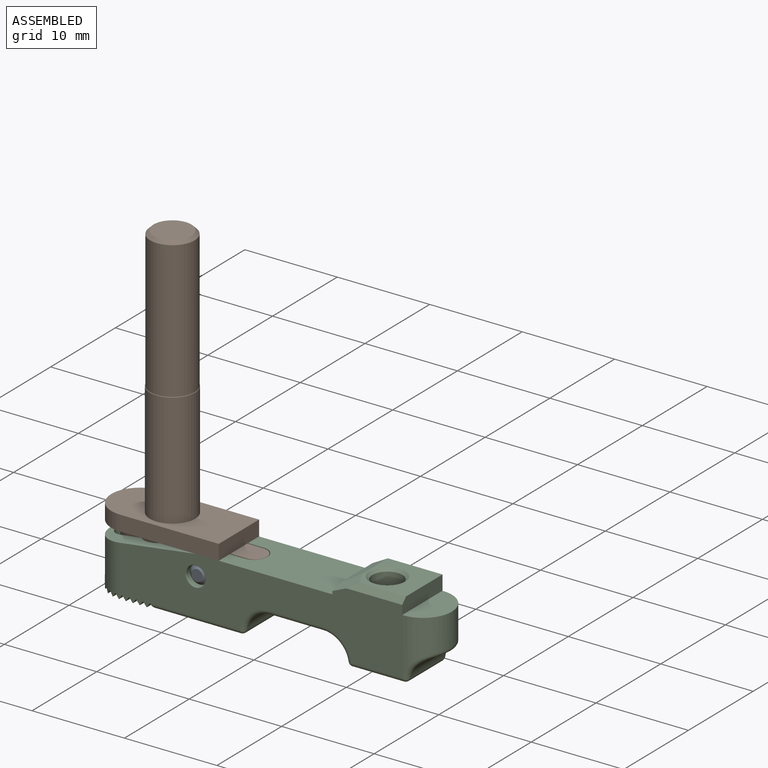
[diagram: assembled view]
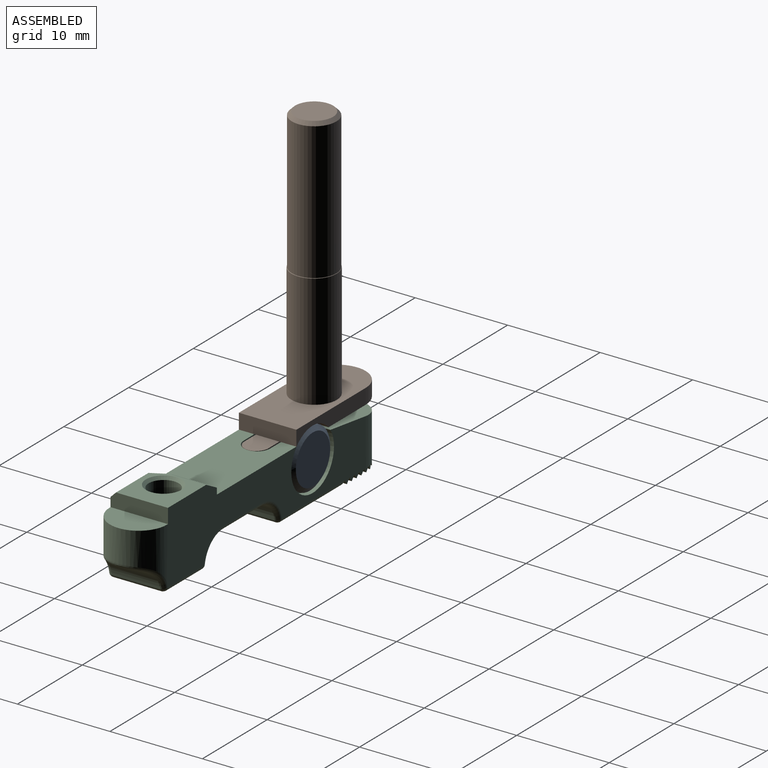
[diagram: assembled view, second angle]
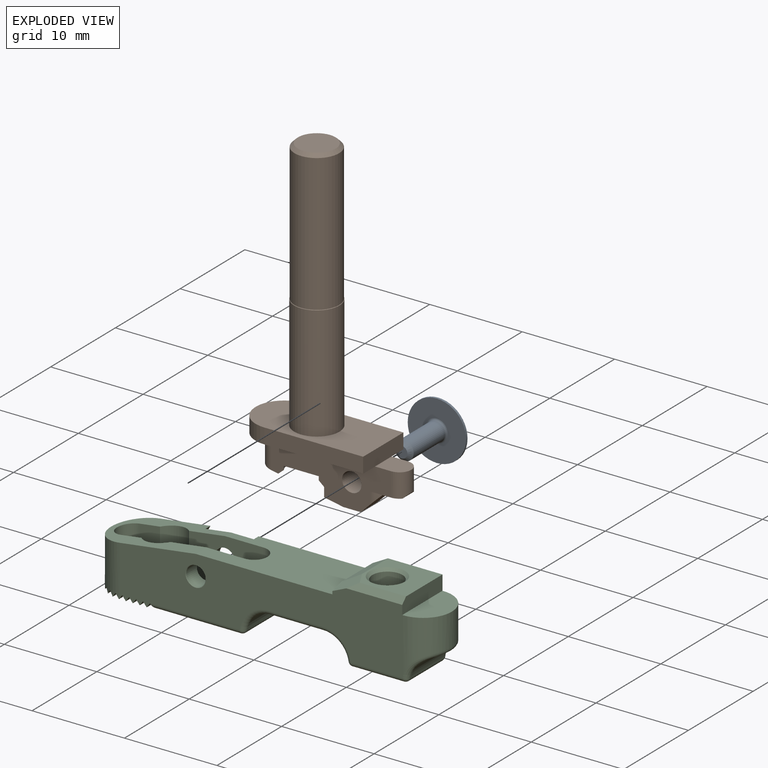
[diagram: exploded view]
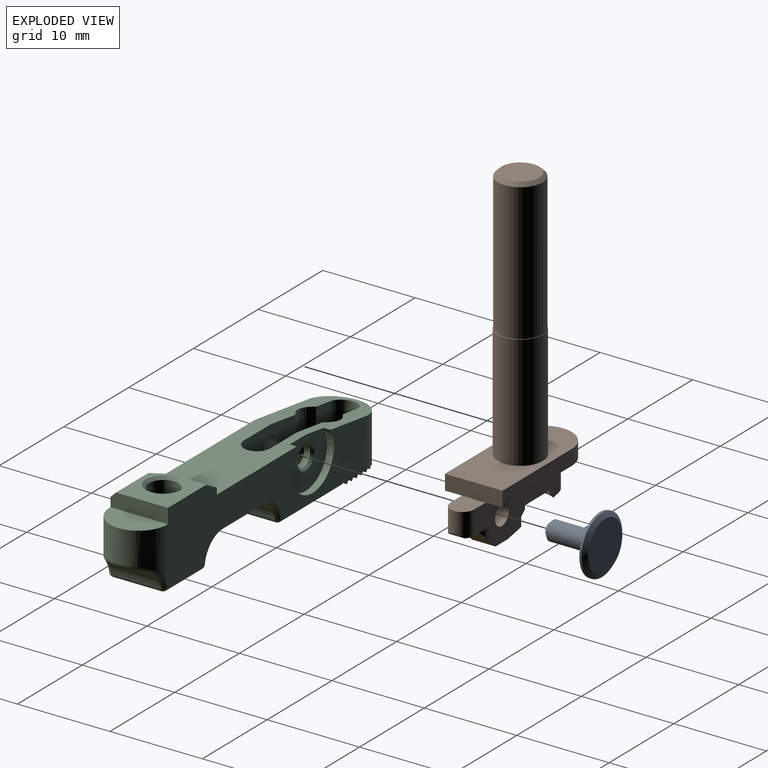
[diagram: exploded view, second angle]
ASSEMBLY  parts=3 mates=2
PART A: 8 faces, bbox 6.3x6.3x6 mm
  f0: torus R=1.22mm, axis (0,0,-1), area 2.2mm2, adj f4,f6
  f1: cone r=2.65mm half-angle=55deg, axis (0,0,1), area 11.1mm2, adj f3,f7
  f2: cone r=0.62mm half-angle=45deg, axis (0,0,-1), area 2.9mm2, adj f4,f5
  f3: cylinder r=3.15mm len=6.3mm, axis (0,0,-1), area 4.8mm2, adj f1,f6
  f4: cylinder r=1.03mm len=4.85mm, axis (0,0,1), area 31.2mm2, adj f0,f2
  f5: plane 1.25x1.25mm, normal (0,0,1), area 1.2mm2, adj f2
  f6: plane 6.3x6.3mm, normal (0,0,1), area 26.5mm2, adj f0,f3
  f7: plane 5.3x5.3mm, normal (0,0,-1), area 22.1mm2, adj f1
PART B: 35 faces, bbox 16.9x34.2x6.3 mm
  f0: cone r=2.41mm half-angle=45deg, axis (0,1,0), area 0.9mm2, adj f2,f4
  f1: cone r=2.45mm half-angle=45deg, axis (0,1,0), area 7.1mm2, adj f2,f34
  f2: cylinder r=2.41mm len=14.84mm, axis (0,-1,0), area 224.7mm2, adj f0,f1
  f3: cylinder r=1.05mm len=2.56mm, axis (0,0,-1), area 16.9mm2, adj f6,f7
  f4: cylinder r=2.45mm len=12.33mm, axis (0,1,0), area 189.8mm2, adj f0,f16
  f5: plane 2.64x2.15mm, normal (0.19,0.98,0), area 4.2mm2, adj f6,f7,f18,f31,f32,f33
  f6: plane 13.03x4.93mm, normal (0,0,1), area 42mm2, adj f3,f5,f8,f9,f10,f11,f17,f18
  f7: plane 13.03x4.93mm, normal (0,0,-1), area 42mm2, adj f3,f5,f8,f9,f10,f11,f17,f18
  f8: plane 2.56x2.06mm, normal (0.19,0.98,0), area 4.8mm2, adj f6,f7,f20,f30
  f9: cylinder r=2.28mm len=2.56mm, axis (0,1,0), area 1.1mm2, adj f6,f7,f28,f33
  f10: cylinder r=2.28mm len=2.56mm, axis (0,1,0), area 1.1mm2, adj f6,f7,f28,f29
  f11: plane 13.81x6.22mm, normal (0,1,0), area 46.7mm2, adj f6,f7,f12,f13,f14,f15,f18,f26
  f12: cylinder r=3.11mm len=6.22mm, axis (0,-1,0), area 16.1mm2, adj f11,f13,f15,f16
  f13: plane 10.7x1.65mm, normal (0,0,-1), area 13.9mm2, adj f11,f12,f14,f16,f27
  f14: plane 6.22x1.65mm, normal (-1,0,0), area 10.3mm2, adj f11,f13,f15,f16,f17
  f15: plane 10.7x1.65mm, normal (0,0,1), area 17.7mm2, adj f11,f12,f14,f16
  f16: plane 13.81x6.22mm, normal (0,-1,0), area 62.9mm2, adj f4,f12,f13,f14,f15
  f17: plane 3.03x2.56mm, normal (0,-1,0), area 7.1mm2, adj f6,f7,f14,f19
  f18: cylinder r=1.28mm len=3.35mm, axis (0,-1,0), area 12.8mm2, adj f5,f6,f7,f11
  f19: cylinder r=1.28mm len=2.58mm, axis (0,-1,0), area 9.9mm2, adj f6,f7,f17,f21,f22
  f20: plane 2.56x1.9mm, normal (0,1,0), area 4.9mm2, adj f6,f7,f8,f23
  f21: plane 1.76x0.35mm, normal (-0.71,0.71,0), area 0.6mm2, adj f19,f22
  f22: plane 3.2x2.56mm, normal (0,1,0), area 5.4mm2, adj f6,f7,f19,f21,f24,f25
  f23: plane 2.56x2.3mm, normal (-0.71,0.71,0), area 7.3mm2, adj f6,f7,f20,f24,f25
  f24: cylinder r=1.28mm len=1.28mm, axis (0,-1,0), area 0.9mm2, adj f6,f22,f23
  f25: cylinder r=1.28mm len=1.28mm, axis (0,-1,0), area 0.9mm2, adj f7,f22,f23
  f26: plane 4.92x1.1mm, normal (0,0,-1), area 3.7mm2, adj f11,f27
  f27: cylinder r=3.3mm len=4.92mm, axis (0,0,-1), area 4.2mm2, adj f11,f13,f26
  f28: plane 4.57x2.56mm, normal (0,1,0), area 11mm2, adj f6,f7,f9,f10
  f29: cone r=2.78mm half-angle=45deg, axis (0,1,0), area 1.9mm2, adj f6,f7,f10,f30
  f30: cylinder r=2.78mm len=2.56mm, axis (0,-1,0), area 2.8mm2, adj f6,f7,f8,f29
  f31: cylinder r=2.78mm len=0.31mm, axis (0,-1,0), area 0mm2, adj f5,f6,f33
  f32: cylinder r=2.78mm len=0.31mm, axis (0,-1,0), area 0mm2, adj f5,f7,f33
  f33: cone r=2.78mm half-angle=45deg, axis (0,1,0), area 1.9mm2, adj f5,f6,f7,f9,f31,f32
  f34: plane 4.1x4.1mm, normal (0,-1,0), area 13.2mm2, adj f1
PART C: 80 faces, bbox 37.2x6.6x8.6 mm
  f0: cone r=1.1mm half-angle=45deg, axis (0,-1,0), area 0.5mm2, adj f6,f13
  f1: cone r=1.05mm half-angle=45deg, axis (0,1,0), area 2.6mm2, adj f5,f26
  f2: cylinder r=1.44mm len=2.87mm, axis (0,0,1), area 11.6mm2, adj f8,f11,f15,f74
  f3: cone r=1.62mm half-angle=45deg, axis (0,0,1), area 4.7mm2, adj f4,f17
  f4: cylinder r=1.62mm len=4.05mm, axis (0,0,1), area 41.4mm2, adj f3,f27
  f5: cylinder r=1.05mm len=2.1mm, axis (0,-1,0), area 4.5mm2, adj f1,f8
  f6: cylinder r=1.05mm len=2.1mm, axis (0,-1,0), area 10.7mm2, adj f0,f74
  f7: plane 11.69x6.61mm, normal (-0.13,0,0.99), area 31.6mm2, adj f8,f9,f10,f12,f13,f15,f25,f26
  f8: plane 8.04x5.25mm, normal (0,-1,0), area 31.6mm2, adj f2,f5,f7,f11,f15,f75,f77,f78
  f9: plane 4.3x2.22mm, normal (0,-1,0), area 9.2mm2, adj f7,f73,f75,f78
  f10: plane 4.3x2.22mm, normal (0,1,0), area 9.2mm2, adj f7,f73,f76,f78
  f11: plane 3.74x2.87mm, normal (0,0,1), area 6.6mm2, adj f2,f8,f74,f77
  f12: plane 30.63x8.24mm, normal (0,1,0), area 137.5mm2, adj f7,f15,f16,f17,f18,f19,f25,f28
  f13: plane 30.63x7.64mm, normal (0,-1,0), area 159.4mm2, adj f0,f7,f15,f16,f18,f19,f28,f29
  f14: plane 9.29x5.22mm, normal (0,0,-1), area 48.5mm2, adj f41,f48,f54,f55
  f15: plane 14.8x6.22mm, normal (0,0,1), area 75.1mm2, adj f2,f7,f8,f12,f13,f16,f25,f26
  f16: plane 6.22x0.69mm, normal (-1,0,0), area 4mm2, adj f12,f13,f15,f71,f79
  f17: plane 5.9x5.62mm, normal (0,0,1), area 20.8mm2, adj f3,f12,f18,f71,f72,f79
  f18: plane 6.22x1.59mm, normal (1,0,0), area 9.7mm2, adj f12,f13,f17,f19,f72
  f19: plane 6.22x3.2mm, normal (0,0,1), area 15.8mm2, adj f12,f13,f18,f46
  f20: cylinder r=2.7mm len=5.22mm, axis (0,-1,0), area 15mm2, adj f57,f66,f67,f68,f69
  f21: plane 5.58x5.22mm, normal (0,0,-1), area 29.1mm2, adj f53,f57,f59,f60
  f22: cylinder r=2.7mm len=5.22mm, axis (0,-1,0), area 19.9mm2, adj f23,f52,f59,f64
  f23: plane 5.75x5.22mm, normal (0,0,-1), area 30mm2, adj f22,f24,f50,f63
  f24: cylinder r=2.7mm len=5.22mm, axis (0,-1,0), area 19.9mm2, adj f23,f49,f55,f61
  f25: cylinder r=3.3mm len=6.6mm, axis (0,1,0), area 11mm2, adj f7,f12,f15,f26
  f26: plane 6.6x5.5mm, normal (0,1,0), area 24.7mm2, adj f1,f7,f15,f25
  f27: plane 3.25x3.25mm, normal (0,0,1), area 8.3mm2, adj f4
  f28: plane 6.22x0.5mm, normal (-0.79,0,-0.62), area 3.9mm2, adj f12,f13,f29,f44
  f29: plane 6.22x0.5mm, normal (0.81,0,-0.58), area 3.8mm2, adj f12,f13,f28,f36,f47
  f30: plane 5.34x0.51mm, normal (-0.79,0,-0.62), area 3.2mm2, adj f31,f35,f47
  f31: plane 4.78x0.52mm, normal (0.81,0,-0.58), area 2.7mm2, adj f30,f32,f47
  f32: plane 4.09x0.54mm, normal (-0.79,0,-0.62), area 2.2mm2, adj f31,f33,f47
  f33: plane 2.9x0.5mm, normal (0.81,0,-0.58), area 1.2mm2, adj f32,f47
  f34: plane 5.98x0.51mm, normal (-0.79,0,-0.62), area 3.7mm2, adj f35,f37,f47
  f35: plane 5.7x0.51mm, normal (0.81,0,-0.58), area 3.4mm2, adj f30,f34,f47
  f36: plane 6.22x0.5mm, normal (-0.79,0,-0.62), area 3.9mm2, adj f29,f37,f47
  f37: plane 6.14x0.5mm, normal (0.81,0,-0.58), area 3.7mm2, adj f34,f36,f47
  f38: plane 6.22x0.5mm, normal (-0.79,0,-0.62), area 3.9mm2, adj f12,f13,f39,f42
  f39: plane 6.22x0.5mm, normal (0.81,0,-0.58), area 3.8mm2, adj f12,f13,f38,f45
  f40: plane 6.22x0.5mm, normal (0.81,0,-0.58), area 3.8mm2, adj f12,f13,f41,f43
  f41: plane 6.38x0.66mm, normal (-0.79,0,-0.62), area 3.8mm2, adj f14,f40,f48,f54
  f42: plane 6.22x0.5mm, normal (0.81,0,-0.58), area 3.8mm2, adj f12,f13,f38,f43
  f43: plane 6.22x0.5mm, normal (-0.79,0,-0.62), area 3.9mm2, adj f12,f13,f40,f42
  f44: plane 6.22x0.5mm, normal (0.81,0,-0.58), area 3.8mm2, adj f12,f13,f28,f45
  f45: plane 6.22x0.5mm, normal (-0.79,0,-0.62), area 3.9mm2, adj f12,f13,f39,f44
  f46: cylinder r=3.11mm len=6.22mm, axis (0,0,-1), area 38.8mm2, adj f12,f13,f19,f67,f68
  f47: cylinder r=3.11mm len=6.22mm, axis (0,0,1), area 49.9mm2, adj f7,f12,f13,f29,f30,f31,f32,f33
  f48: cylinder r=0.5mm len=9.68mm, axis (1,0,0), area 7.4mm2, adj f13,f14,f41,f51
  f49: torus R=3.2mm, axis (0,-1,0), area 3.2mm2, adj f13,f24,f50,f51
  f50: cylinder r=0.5mm len=5.75mm, axis (1,0,0), area 4.5mm2, adj f13,f23,f49,f52
  f51: sphere r=0.5mm, area 0.4mm2, adj f48,f49,f55
  f52: torus R=3.2mm, axis (0,-1,0), area 3.2mm2, adj f13,f22,f50,f56
  f53: cylinder r=0.5mm len=5.58mm, axis (1,0,0), area 4.4mm2, adj f13,f21,f56,f65
  f54: cylinder r=0.5mm len=9.68mm, axis (-1,0,0), area 7.4mm2, adj f12,f14,f41,f58
  f55: cylinder r=0.5mm len=5.22mm, axis (0,-1,0), area 3.7mm2, adj f14,f24,f51,f58
  f56: sphere r=0.5mm, area 0.4mm2, adj f52,f53,f59
  f57: cylinder r=0.5mm len=5.22mm, axis (0,-1,0), area 3.7mm2, adj f20,f21,f65,f70
  f58: sphere r=0.5mm, area 0.2mm2, adj f54,f55,f61
  f59: cylinder r=0.5mm len=5.22mm, axis (0,-1,0), area 3.7mm2, adj f21,f22,f56,f62
  f60: cylinder r=0.5mm len=5.58mm, axis (-1,0,0), area 4.4mm2, adj f12,f21,f62,f70
  f61: torus R=3.2mm, axis (0,-1,0), area 3.2mm2, adj f12,f24,f58,f63
  f62: sphere r=0.5mm, area 0.6mm2, adj f59,f60,f64
  f63: cylinder r=0.5mm len=5.75mm, axis (-1,0,0), area 4.5mm2, adj f12,f23,f61,f64
  f64: torus R=3.2mm, axis (0,-1,0), area 3.2mm2, adj f12,f22,f62,f63
  f65: sphere r=0.5mm, area 0.2mm2, adj f53,f57,f66
  f66: torus R=3.2mm, axis (0,-1,0), area 0.2mm2, adj f13,f20,f65,f67
  f67: bspline ~3.11x3.11mm, area 3.6mm2, adj f20,f46,f66,f68
  f68: bspline ~3.11x3.11mm, area 3.6mm2, adj f20,f46,f67,f69
  f69: torus R=3.2mm, axis (0,-1,0), area 0.2mm2, adj f12,f20,f68,f70
  f70: sphere r=0.5mm, area 0.2mm2, adj f57,f60,f69
  f71: plane 4.72x1.65mm, normal (-0.48,0,0.88), area 8.2mm2, adj f12,f16,f17,f79
  f72: plane 6.05x0.6mm, normal (0,-0.71,0.71), area 4.7mm2, adj f13,f17,f18,f79
  f73: cylinder r=1.44mm len=4mm, axis (0,0,1), area 18mm2, adj f7,f9,f10,f78
  f74: plane 8.04x5.25mm, normal (0,1,0), area 31.6mm2, adj f2,f6,f7,f11,f15,f76,f77,f78
  f75: cylinder r=2.12mm len=4.72mm, axis (0,0,-1), area 15.9mm2, adj f7,f8,f9,f78
  f76: cylinder r=2.12mm len=4.72mm, axis (0,0,-1), area 15.9mm2, adj f7,f10,f74,f78
  f77: cylinder r=1.44mm len=2.87mm, axis (0,0,-1), area 12mm2, adj f8,f11,f74,f78
  f78: plane 13.96x4.25mm, normal (0,0,1), area 41.3mm2, adj f8,f9,f10,f73,f74,f75,f76,f77
  f79: plane 2.53x2.22mm, normal (-0.39,-0.21,0.89), area 4.5mm2, adj f13,f16,f17,f71,f72
PLACE A rot(axis=(0.58,0.58,-0.58),120deg) t=(2.15,2.42,0.27)mm
PLACE B rot(axis=(0,0.71,-0.71),180deg) t=(-2.53,5.31,4.12)mm
PLACE C t=(-9.15,5.31,-4.18)mm
MATE cylindrical B.f27 <-> C.f0  axis (0,-1,0) through (2.15,4.03,0.27)mm
MATE cylindrical A.f0 <-> C.f0  axis (0,-1,0) through (2.15,2.42,0.27)mm
